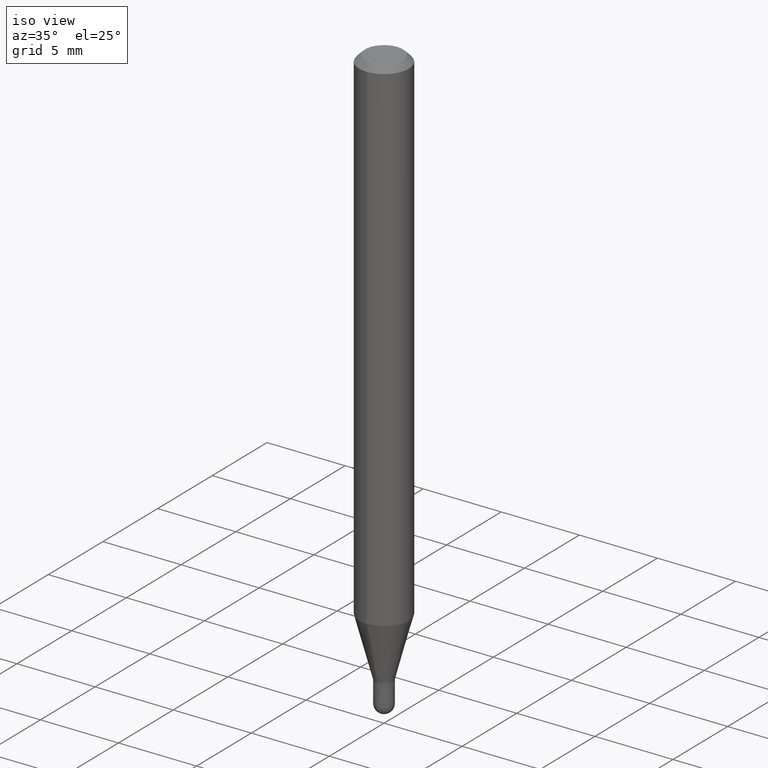
[diagram: clean part render]
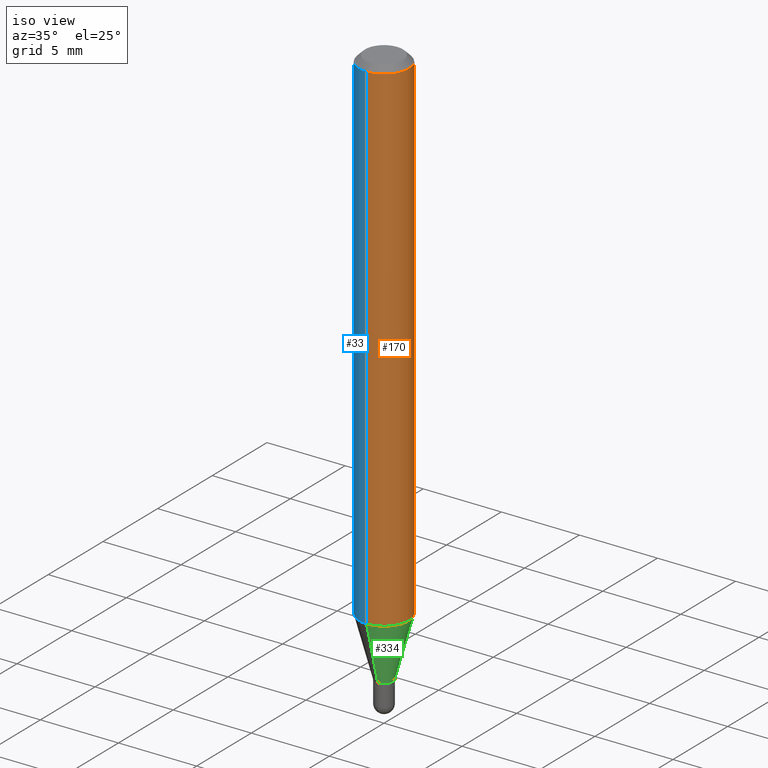
[diagram: same view with three faces highlighted in distinct colors, each labeled with its STEP entity id]
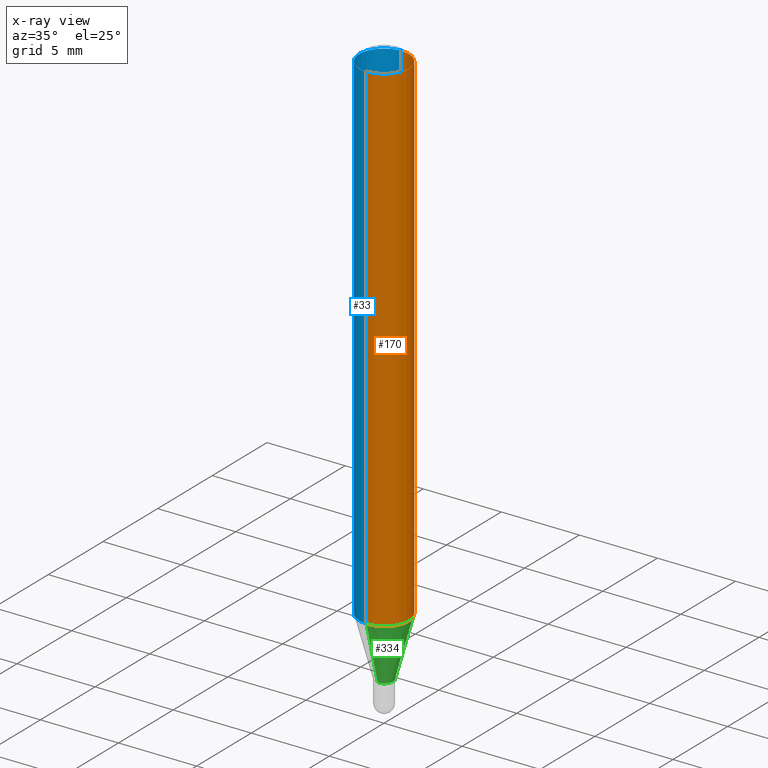
[diagram: x-ray of the same camera — body ghosted, the three highlighted faces saturated]
A machine part, iso view with three faces highlighted in distinct colors.
The next image is the same camera in x-ray (body ghosted, the three faces saturated) — at least one of them is partly hidden behind the body in this view.
Their STEP definitions:

[orange] entity #170 — the highlighted cylindrical surface (edge-blend (fillet) strip) has radius 1.5875 mm, axis along (-0, 0, 1).
#35 = CARTESIAN_POINT ( 'NONE',  ( 4.440892098500938748E-16, 0.06249999999999995143, -0.01500000000000054588 ) ) ;
#39 = LINE ( 'NONE', #342, #297 ) ;
#67 = VERTEX_POINT ( 'NONE', #329 ) ;
#86 = ORIENTED_EDGE ( 'NONE', *, *, #499, .T. ) ;
#93 = EDGE_CURVE ( 'NONE', #489, #67, #313, .T. ) ;
#95 = VECTOR ( 'NONE', #349, 39.37007874015748143 ) ;
#99 = EDGE_CURVE ( 'NONE', #431, #458, #403, .T. ) ;
#104 = CARTESIAN_POINT ( 'NONE',  ( 3.112389801597218534E-29, -4.443674309623619373E-15, -1.272717967697245101 ) ) ;
#139 = CARTESIAN_POINT ( 'NONE',  ( 4.440892098500625669E-16, 0.06250000000000000000, -2.182177445439684946E-16 ) ) ;
#145 = CARTESIAN_POINT ( 'NONE',  ( 0.000000000000000000, 0.000000000000000000, 0.000000000000000000 ) ) ;
#151 = DIRECTION ( 'NONE',  ( -2.445467008868060164E-29, 3.491483912703496307E-15, 1.000000000000000000 ) ) ;
#170 = ADVANCED_FACE ( 'NONE', ( #449 ), #255, .T. ) ;
#202 = DIRECTION ( 'NONE',  ( -2.445467008868060164E-29, 3.491483912703496307E-15, 1.000000000000000000 ) ) ;
#205 = CARTESIAN_POINT ( 'NONE',  ( -4.364351673553605587E-16, -0.06250000000000446865, -1.272717967697244879 ) ) ;
#248 = AXIS2_PLACEMENT_3D ( 'NONE', #145, #151, #425 ) ;
#249 = EDGE_CURVE ( 'NONE', #489, #431, #39, .T. ) ;
#255 = CYLINDRICAL_SURFACE ( 'NONE', #248, 0.06250000000000000000 ) ;
#256 = LINE ( 'NONE', #139, #95 ) ;
#258 = CARTESIAN_POINT ( 'NONE',  ( 3.668200513302170120E-31, -5.237225869055358797E-17, -0.01500000000000032904 ) ) ;
#259 = AXIS2_PLACEMENT_3D ( 'NONE', #258, #364, #454 ) ;
#280 = CARTESIAN_POINT ( 'NONE',  ( -4.364351673553912750E-16, -0.06250000000000005551, -0.01500000000000011047 ) ) ;
#297 = VECTOR ( 'NONE', #202, 39.37007874015748143 ) ;
#301 = ORIENTED_EDGE ( 'NONE', *, *, #249, .F. ) ;
#313 = CIRCLE ( 'NONE', #483, 0.06250000000000000000 ) ;
#329 = CARTESIAN_POINT ( 'NONE',  ( 4.440892098500934804E-16, 0.06249999999999552441, -1.272717967697245323 ) ) ;
#342 = CARTESIAN_POINT ( 'NONE',  ( -4.364351673553916201E-16, -0.06250000000000000000, 2.182177445439684946E-16 ) ) ;
#349 = DIRECTION ( 'NONE',  ( -2.445467008868060164E-29, 3.491483912703496307E-15, 1.000000000000000000 ) ) ;
#364 = DIRECTION ( 'NONE',  ( -2.445467008868060164E-29, 3.491483912703496307E-15, 1.000000000000000000 ) ) ;
#403 = CIRCLE ( 'NONE', #259, 0.06250000000000000000 ) ;
#417 = EDGE_LOOP ( 'NONE', ( #500, #86, #469, #301 ) ) ;
#425 = DIRECTION ( 'NONE',  ( -6.982962677686265922E-15, -1.000000000000000000, 3.491483912703495913E-15 ) ) ;
#431 = VERTEX_POINT ( 'NONE', #280 ) ;
#449 = FACE_OUTER_BOUND ( 'NONE', #417, .T. ) ;
#454 = DIRECTION ( 'NONE',  ( -6.982962677686265922E-15, -1.000000000000000000, 3.483106191921935554E-15 ) ) ;
#458 = VERTEX_POINT ( 'NONE', #35 ) ;
#460 = DIRECTION ( 'NONE',  ( -2.445467008868060164E-29, 3.491483912703496307E-15, 1.000000000000000000 ) ) ;
#469 = ORIENTED_EDGE ( 'NONE', *, *, #99, .F. ) ;
#483 = AXIS2_PLACEMENT_3D ( 'NONE', #104, #460, #498 ) ;
#489 = VERTEX_POINT ( 'NONE', #205 ) ;
#498 = DIRECTION ( 'NONE',  ( -6.982962677686265922E-15, -1.000000000000000000, 4.370956789862821150E-15 ) ) ;
#499 = EDGE_CURVE ( 'NONE', #67, #458, #256, .T. ) ;
#500 = ORIENTED_EDGE ( 'NONE', *, *, #93, .T. ) ;

[blue] entity #33 — the highlighted cylindrical surface (edge-blend (fillet) strip) has radius 1.5875 mm, axis along (-0, 0, 1).
#33 = ADVANCED_FACE ( 'NONE', ( #251 ), #409, .T. ) ;
#35 = CARTESIAN_POINT ( 'NONE',  ( 4.440892098500938748E-16, 0.06249999999999995143, -0.01500000000000054588 ) ) ;
#39 = LINE ( 'NONE', #342, #297 ) ;
#41 = CARTESIAN_POINT ( 'NONE',  ( 3.112389801597218534E-29, -4.443674309623619373E-15, -1.272717967697245101 ) ) ;
#46 = ORIENTED_EDGE ( 'NONE', *, *, #320, .F. ) ;
#65 = CARTESIAN_POINT ( 'NONE',  ( 0.000000000000000000, 0.000000000000000000, 0.000000000000000000 ) ) ;
#67 = VERTEX_POINT ( 'NONE', #329 ) ;
#95 = VECTOR ( 'NONE', #349, 39.37007874015748143 ) ;
#125 = DIRECTION ( 'NONE',  ( -2.445467008868060164E-29, 3.491483912703496307E-15, 1.000000000000000000 ) ) ;
#136 = AXIS2_PLACEMENT_3D ( 'NONE', #65, #380, #222 ) ;
#139 = CARTESIAN_POINT ( 'NONE',  ( 4.440892098500625669E-16, 0.06250000000000000000, -2.182177445439684946E-16 ) ) ;
#201 = ORIENTED_EDGE ( 'NONE', *, *, #309, .T. ) ;
#202 = DIRECTION ( 'NONE',  ( -2.445467008868060164E-29, 3.491483912703496307E-15, 1.000000000000000000 ) ) ;
#205 = CARTESIAN_POINT ( 'NONE',  ( -4.364351673553605587E-16, -0.06250000000000446865, -1.272717967697244879 ) ) ;
#213 = DIRECTION ( 'NONE',  ( -2.445467008868060164E-29, 3.491483912703496307E-15, 1.000000000000000000 ) ) ;
#216 = AXIS2_PLACEMENT_3D ( 'NONE', #472, #125, #274 ) ;
#222 = DIRECTION ( 'NONE',  ( -6.982962677686265922E-15, -1.000000000000000000, 3.491483912703495913E-15 ) ) ;
#249 = EDGE_CURVE ( 'NONE', #489, #431, #39, .T. ) ;
#251 = FACE_OUTER_BOUND ( 'NONE', #505, .T. ) ;
#256 = LINE ( 'NONE', #139, #95 ) ;
#274 = DIRECTION ( 'NONE',  ( -6.982962677686265922E-15, -1.000000000000000000, 3.483106191921935554E-15 ) ) ;
#280 = CARTESIAN_POINT ( 'NONE',  ( -4.364351673553912750E-16, -0.06250000000000005551, -0.01500000000000011047 ) ) ;
#297 = VECTOR ( 'NONE', #202, 39.37007874015748143 ) ;
#309 = EDGE_CURVE ( 'NONE', #67, #489, #432, .T. ) ;
#320 = EDGE_CURVE ( 'NONE', #458, #431, #339, .T. ) ;
#329 = CARTESIAN_POINT ( 'NONE',  ( 4.440892098500934804E-16, 0.06249999999999552441, -1.272717967697245323 ) ) ;
#330 = ORIENTED_EDGE ( 'NONE', *, *, #249, .T. ) ;
#331 = AXIS2_PLACEMENT_3D ( 'NONE', #41, #213, #395 ) ;
#339 = CIRCLE ( 'NONE', #216, 0.06250000000000000000 ) ;
#342 = CARTESIAN_POINT ( 'NONE',  ( -4.364351673553916201E-16, -0.06250000000000000000, 2.182177445439684946E-16 ) ) ;
#349 = DIRECTION ( 'NONE',  ( -2.445467008868060164E-29, 3.491483912703496307E-15, 1.000000000000000000 ) ) ;
#380 = DIRECTION ( 'NONE',  ( -2.445467008868060164E-29, 3.491483912703496307E-15, 1.000000000000000000 ) ) ;
#395 = DIRECTION ( 'NONE',  ( -6.982962677686265922E-15, -1.000000000000000000, 4.370956789862821150E-15 ) ) ;
#409 = CYLINDRICAL_SURFACE ( 'NONE', #136, 0.06250000000000000000 ) ;
#431 = VERTEX_POINT ( 'NONE', #280 ) ;
#432 = CIRCLE ( 'NONE', #331, 0.06250000000000000000 ) ;
#458 = VERTEX_POINT ( 'NONE', #35 ) ;
#472 = CARTESIAN_POINT ( 'NONE',  ( 3.668200513302170120E-31, -5.237225869055358797E-17, -0.01500000000000032904 ) ) ;
#489 = VERTEX_POINT ( 'NONE', #205 ) ;
#492 = ORIENTED_EDGE ( 'NONE', *, *, #499, .F. ) ;
#499 = EDGE_CURVE ( 'NONE', #67, #458, #256, .T. ) ;
#505 = EDGE_LOOP ( 'NONE', ( #492, #201, #330, #46 ) ) ;

[green] entity #334 — the highlighted conical surface has half-angle 15 deg.
#16 = VERTEX_POINT ( 'NONE', #113 ) ;
#37 = DIRECTION ( 'NONE',  ( -6.982962677686265133E-15, -1.000000000000000000, 0.000000000000000000 ) ) ;
#38 = EDGE_CURVE ( 'NONE', #199, #16, #110, .T. ) ;
#44 = FACE_OUTER_BOUND ( 'NONE', #382, .T. ) ;
#48 = VECTOR ( 'NONE', #200, 39.37007874015748143 ) ;
#56 = EDGE_CURVE ( 'NONE', #199, #489, #182, .T. ) ;
#66 = CARTESIAN_POINT ( 'NONE',  ( -1.571166602479056403E-16, -0.02250000000000488762, -1.421999999999999931 ) ) ;
#67 = VERTEX_POINT ( 'NONE', #329 ) ;
#73 = ORIENTED_EDGE ( 'NONE', *, *, #347, .T. ) ;
#77 = ORIENTED_EDGE ( 'NONE', *, *, #38, .T. ) ;
#93 = EDGE_CURVE ( 'NONE', #489, #67, #313, .T. ) ;
#104 = CARTESIAN_POINT ( 'NONE',  ( 3.112389801597218534E-29, -4.443674309623619373E-15, -1.272717967697245101 ) ) ;
#107 = DIRECTION ( 'NONE',  ( -2.445467008868060164E-29, 3.491483912703496307E-15, 1.000000000000000000 ) ) ;
#110 = CIRCLE ( 'NONE', #512, 0.02249999999999992284 ) ;
#111 = CONICAL_SURFACE ( 'NONE', #130, 0.02249999999999992284, 0.2617993877991501850 ) ;
#113 = CARTESIAN_POINT ( 'NONE',  ( 3.019806626980753384E-16, 0.02249999999999496153, -1.421999999999999931 ) ) ;
#130 = AXIS2_PLACEMENT_3D ( 'NONE', #209, #479, #37 ) ;
#143 = ORIENTED_EDGE ( 'NONE', *, *, #93, .F. ) ;
#182 = LINE ( 'NONE', #66, #410 ) ;
#189 = DIRECTION ( 'NONE',  ( -6.982962677686265133E-15, -1.000000000000000000, 0.000000000000000000 ) ) ;
#199 = VERTEX_POINT ( 'NONE', #235 ) ;
#200 = DIRECTION ( 'NONE',  ( 1.839019923739599526E-15, 0.2588190451025248473, 0.9659258262890670910 ) ) ;
#205 = CARTESIAN_POINT ( 'NONE',  ( -4.364351673553605587E-16, -0.06250000000000446865, -1.272717967697244879 ) ) ;
#209 = CARTESIAN_POINT ( 'NONE',  ( 3.477454086610382220E-29, -4.964890123864371696E-15, -1.421999999999999931 ) ) ;
#235 = CARTESIAN_POINT ( 'NONE',  ( -1.571166602479056403E-16, -0.02250000000000488762, -1.421999999999999931 ) ) ;
#313 = CIRCLE ( 'NONE', #483, 0.06250000000000000000 ) ;
#326 = DIRECTION ( 'NONE',  ( -1.807323732225329350E-15, -0.2588190451025180194, 0.9659258262890689783 ) ) ;
#329 = CARTESIAN_POINT ( 'NONE',  ( 4.440892098500934804E-16, 0.06249999999999552441, -1.272717967697245323 ) ) ;
#334 = ADVANCED_FACE ( 'NONE', ( #44 ), #111, .T. ) ;
#347 = EDGE_CURVE ( 'NONE', #16, #67, #430, .T. ) ;
#377 = CARTESIAN_POINT ( 'NONE',  ( 3.477454086610382220E-29, -4.964890123864371696E-15, -1.421999999999999931 ) ) ;
#382 = EDGE_LOOP ( 'NONE', ( #77, #73, #143, #412 ) ) ;
#410 = VECTOR ( 'NONE', #326, 39.37007874015749564 ) ;
#412 = ORIENTED_EDGE ( 'NONE', *, *, #56, .F. ) ;
#430 = LINE ( 'NONE', #504, #48 ) ;
#460 = DIRECTION ( 'NONE',  ( -2.445467008868060164E-29, 3.491483912703496307E-15, 1.000000000000000000 ) ) ;
#479 = DIRECTION ( 'NONE',  ( -2.445467008868060164E-29, 3.491483912703496307E-15, 1.000000000000000000 ) ) ;
#483 = AXIS2_PLACEMENT_3D ( 'NONE', #104, #460, #498 ) ;
#489 = VERTEX_POINT ( 'NONE', #205 ) ;
#498 = DIRECTION ( 'NONE',  ( -6.982962677686265922E-15, -1.000000000000000000, 4.370956789862821150E-15 ) ) ;
#504 = CARTESIAN_POINT ( 'NONE',  ( 1.598721155460567527E-16, 0.02249999999999495806, -1.421999999999999931 ) ) ;
#512 = AXIS2_PLACEMENT_3D ( 'NONE', #377, #107, #189 ) ;